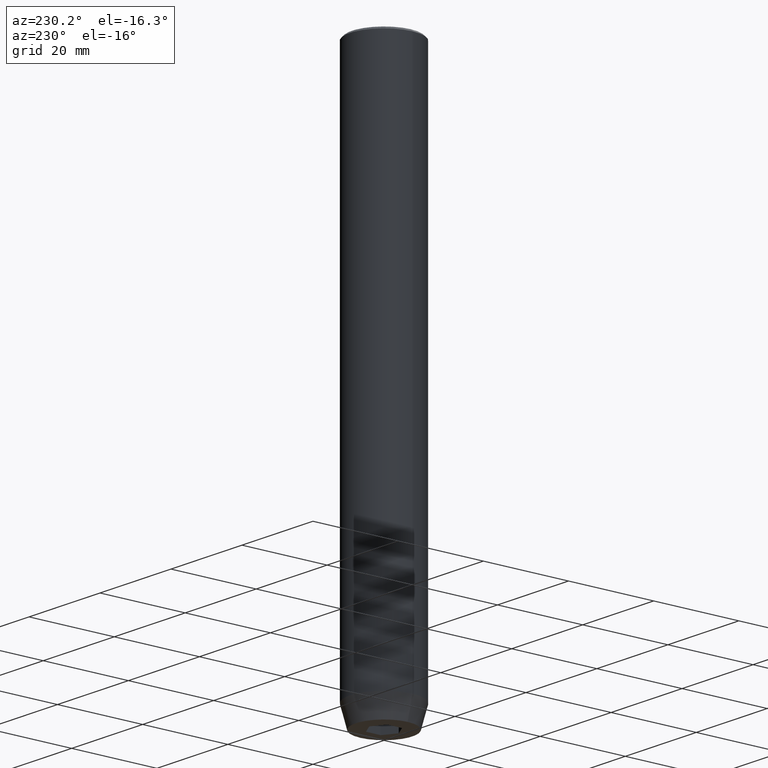
[diagram: clean part render]
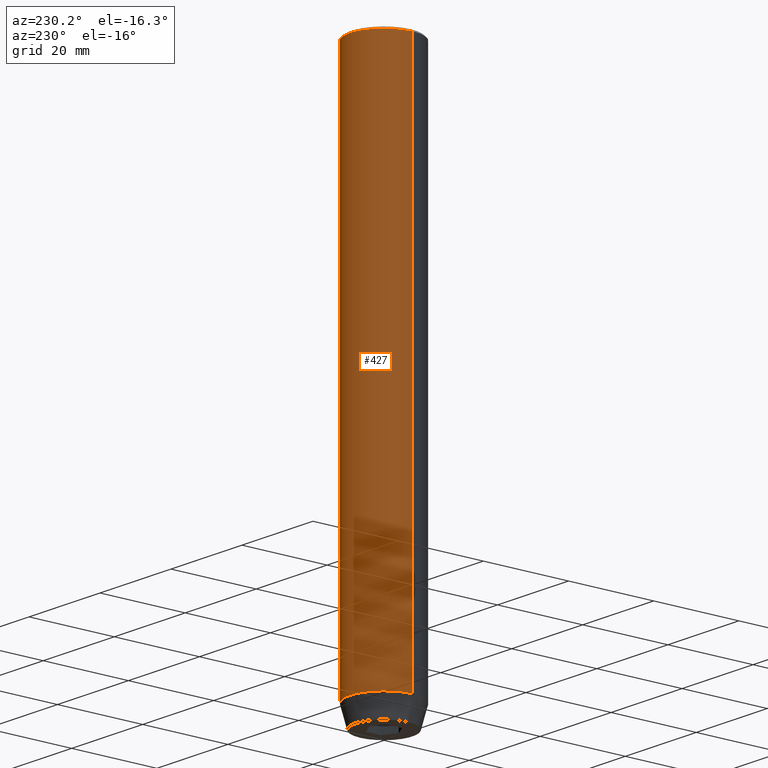
[diagram: same view with one face highlighted and labeled with its STEP entity id]
A machine part, auxiliary view. The second image highlights one B-rep face of the part: STEP entity #427.
In plain terms, the highlighted cylindrical surface (partial cylindrical patch) has radius 8 mm, axis along (-0, -0, 1).
Its self-contained STEP definition (entity closure, byte-faithful):
#17 = DIRECTION ( 'NONE',  ( -0.000000000000000000, -0.000000000000000000, 1.000000000000000000 ) ) ;
#47 = CIRCLE ( 'NONE', #424, 8.000000000000000000 ) ;
#58 = VERTEX_POINT ( 'NONE', #414 ) ;
#80 = ORIENTED_EDGE ( 'NONE', *, *, #105, .T. ) ;
#85 = DIRECTION ( 'NONE',  ( 0.000000000000000000, 0.000000000000000000, -1.000000000000000000 ) ) ;
#88 = VECTOR ( 'NONE', #17, 1000.000000000000000 ) ;
#96 = DIRECTION ( 'NONE',  ( 1.000000000000000000, 0.000000000000000000, 0.000000000000000000 ) ) ;
#105 = EDGE_CURVE ( 'NONE', #480, #152, #47, .T. ) ;
#125 = CARTESIAN_POINT ( 'NONE',  ( 8.000000000000000000, 0.000000000000000000, 0.000000000000000000 ) ) ;
#133 = CARTESIAN_POINT ( 'NONE',  ( 0.000000000000000000, 0.000000000000000000, 0.000000000000000000 ) ) ;
#152 = VERTEX_POINT ( 'NONE', #555 ) ;
#184 = VERTEX_POINT ( 'NONE', #207 ) ;
#186 = DIRECTION ( 'NONE',  ( 1.000000000000000000, 0.000000000000000000, 0.000000000000000000 ) ) ;
#199 = VECTOR ( 'NONE', #421, 1000.000000000000000 ) ;
#207 = CARTESIAN_POINT ( 'NONE',  ( 8.000000000000000000, 0.000000000000000000, -0.4999999999999935052 ) ) ;
#214 = DIRECTION ( 'NONE',  ( 1.000000000000000000, 0.000000000000000000, 0.000000000000000000 ) ) ;
#219 = ORIENTED_EDGE ( 'NONE', *, *, #452, .T. ) ;
#222 = EDGE_LOOP ( 'NONE', ( #80, #366, #219, #352 ) ) ;
#246 = EDGE_CURVE ( 'NONE', #480, #184, #559, .T. ) ;
#252 = LINE ( 'NONE', #430, #88 ) ;
#281 = CARTESIAN_POINT ( 'NONE',  ( 8.000000000000000000, 0.000000000000000000, -125.0000000000000000 ) ) ;
#304 = FACE_OUTER_BOUND ( 'NONE', #222, .T. ) ;
#351 = CYLINDRICAL_SURFACE ( 'NONE', #362, 8.000000000000000000 ) ;
#352 = ORIENTED_EDGE ( 'NONE', *, *, #246, .F. ) ;
#362 = AXIS2_PLACEMENT_3D ( 'NONE', #133, #526, #96 ) ;
#365 = CARTESIAN_POINT ( 'NONE',  ( 0.000000000000000000, 0.000000000000000000, -125.0000000000000000 ) ) ;
#366 = ORIENTED_EDGE ( 'NONE', *, *, #462, .T. ) ;
#397 = DIRECTION ( 'NONE',  ( -0.000000000000000000, -0.000000000000000000, 1.000000000000000000 ) ) ;
#414 = CARTESIAN_POINT ( 'NONE',  ( -8.000000000000000000, 9.797174393178825657E-16, -0.4999999999999935052 ) ) ;
#421 = DIRECTION ( 'NONE',  ( -0.000000000000000000, -0.000000000000000000, 1.000000000000000000 ) ) ;
#424 = AXIS2_PLACEMENT_3D ( 'NONE', #365, #397, #186 ) ;
#427 = ADVANCED_FACE ( 'NONE', ( #304 ), #351, .T. ) ;
#430 = CARTESIAN_POINT ( 'NONE',  ( -8.000000000000000000, 9.797174393178825657E-16, 0.000000000000000000 ) ) ;
#450 = CIRCLE ( 'NONE', #507, 8.000000000000000000 ) ;
#452 = EDGE_CURVE ( 'NONE', #58, #184, #450, .T. ) ;
#462 = EDGE_CURVE ( 'NONE', #152, #58, #252, .T. ) ;
#480 = VERTEX_POINT ( 'NONE', #281 ) ;
#507 = AXIS2_PLACEMENT_3D ( 'NONE', #572, #85, #214 ) ;
#526 = DIRECTION ( 'NONE',  ( -0.000000000000000000, -0.000000000000000000, 1.000000000000000000 ) ) ;
#555 = CARTESIAN_POINT ( 'NONE',  ( -8.000000000000000000, 9.797174393178825657E-16, -125.0000000000000000 ) ) ;
#559 = LINE ( 'NONE', #125, #199 ) ;
#572 = CARTESIAN_POINT ( 'NONE',  ( 0.000000000000000000, 0.000000000000000000, -0.4999999999999935052 ) ) ;